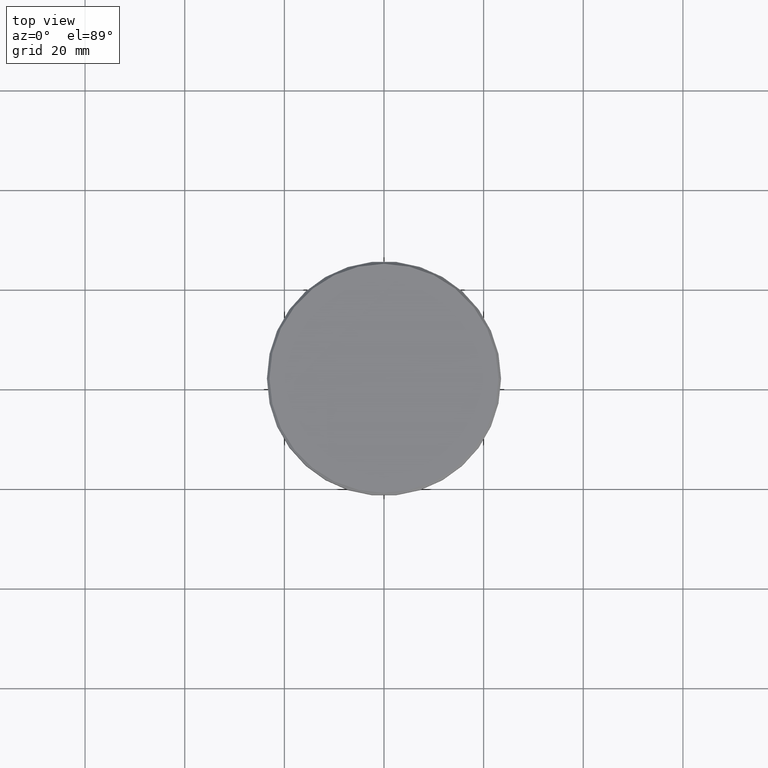
[diagram: clean part render]
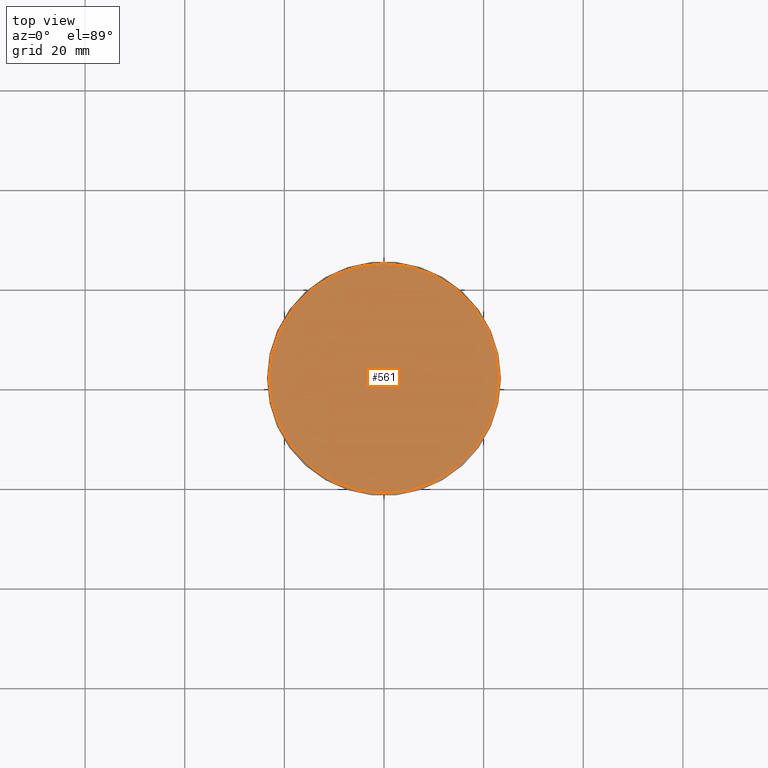
[diagram: same view with one face highlighted and labeled with its STEP entity id]
A machine part, top view. The second image highlights one B-rep face of the part: STEP entity #561.
In plain terms, the highlighted planar face has unit normal (0, -0, 1).
Its self-contained STEP definition (entity closure, byte-faithful):
#73 = CARTESIAN_POINT ( 'NONE',  ( 23.00000000000001066, 2.847303808017596928E-15, 0.000000000000000000 ) ) ;
#91 = AXIS2_PLACEMENT_3D ( 'NONE', #1027, #580, #573 ) ;
#146 = DIRECTION ( 'NONE',  ( 0.000000000000000000, -0.000000000000000000, 1.000000000000000000 ) ) ;
#147 = CARTESIAN_POINT ( 'NONE',  ( 0.000000000000000000, 0.000000000000000000, 0.000000000000000000 ) ) ;
#151 = AXIS2_PLACEMENT_3D ( 'NONE', #961, #146, #506 ) ;
#160 = EDGE_CURVE ( 'NONE', #393, #305, #602, .T. ) ;
#223 = ORIENTED_EDGE ( 'NONE', *, *, #160, .T. ) ;
#231 = CIRCLE ( 'NONE', #965, 23.00000000000001066 ) ;
#269 = EDGE_CURVE ( 'NONE', #305, #393, #231, .T. ) ;
#305 = VERTEX_POINT ( 'NONE', #1066 ) ;
#312 = EDGE_LOOP ( 'NONE', ( #442, #223 ) ) ;
#393 = VERTEX_POINT ( 'NONE', #73 ) ;
#442 = ORIENTED_EDGE ( 'NONE', *, *, #269, .T. ) ;
#502 = PLANE ( 'NONE',  #151 ) ;
#506 = DIRECTION ( 'NONE',  ( 1.000000000000000000, 0.000000000000000000, 0.000000000000000000 ) ) ;
#561 = ADVANCED_FACE ( 'NONE', ( #598 ), #502, .T. ) ;
#573 = DIRECTION ( 'NONE',  ( 1.000000000000000000, 0.000000000000000000, 0.000000000000000000 ) ) ;
#580 = DIRECTION ( 'NONE',  ( -0.000000000000000000, -0.000000000000000000, 1.000000000000000000 ) ) ;
#598 = FACE_OUTER_BOUND ( 'NONE', #312, .T. ) ;
#602 = CIRCLE ( 'NONE', #91, 23.00000000000001066 ) ;
#950 = DIRECTION ( 'NONE',  ( 1.000000000000000000, 0.000000000000000000, 0.000000000000000000 ) ) ;
#961 = CARTESIAN_POINT ( 'NONE',  ( 0.000000000000000000, 0.000000000000000000, 0.000000000000000000 ) ) ;
#962 = DIRECTION ( 'NONE',  ( -0.000000000000000000, -0.000000000000000000, 1.000000000000000000 ) ) ;
#965 = AXIS2_PLACEMENT_3D ( 'NONE', #147, #962, #950 ) ;
#1027 = CARTESIAN_POINT ( 'NONE',  ( 0.000000000000000000, 0.000000000000000000, 0.000000000000000000 ) ) ;
#1066 = CARTESIAN_POINT ( 'NONE',  ( -23.00000000000001066, 0.000000000000000000, 0.000000000000000000 ) ) ;